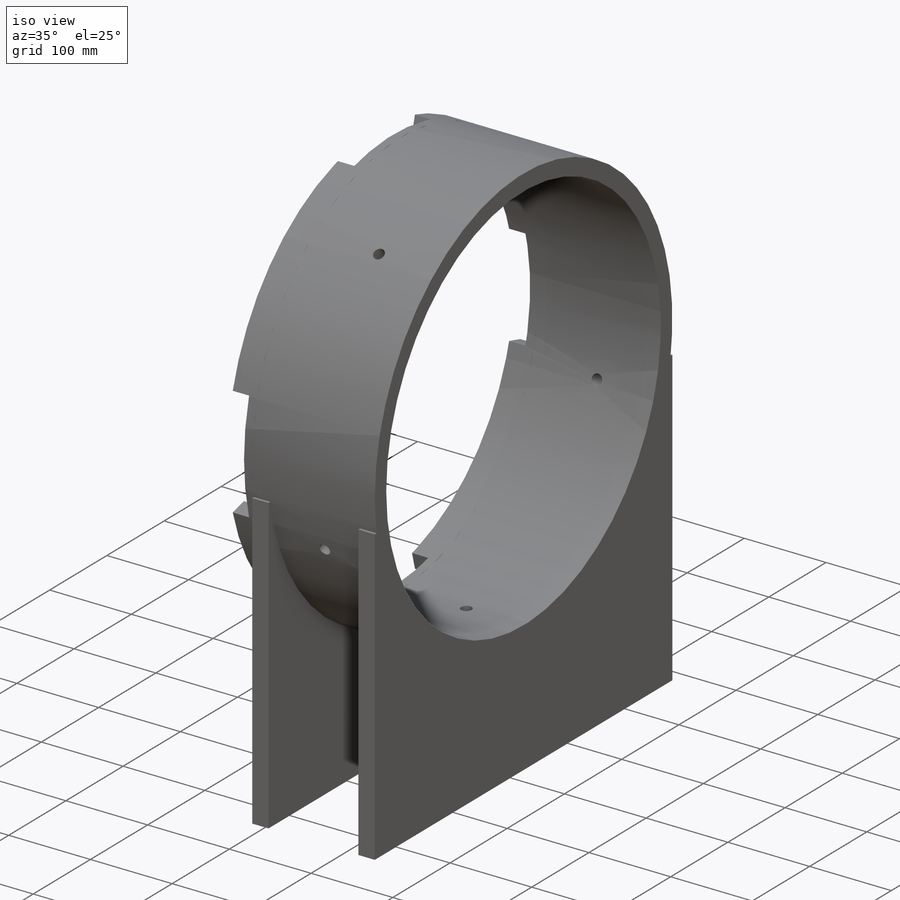
[diagram: iso view]
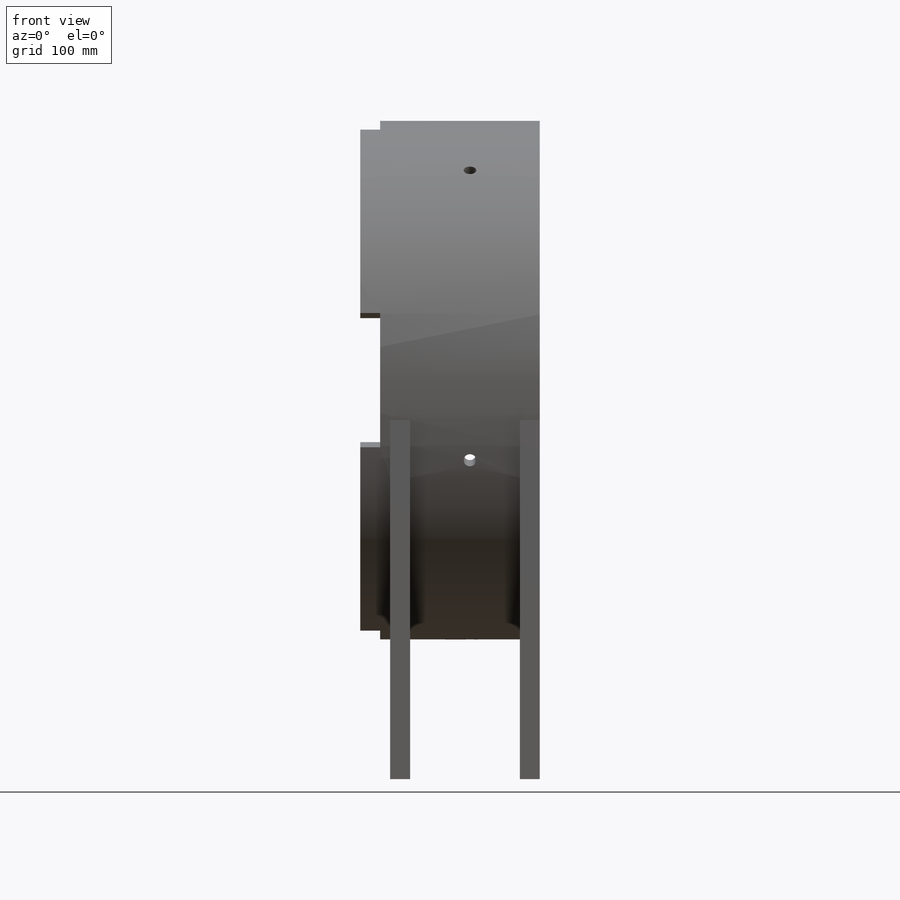
[diagram: front view]
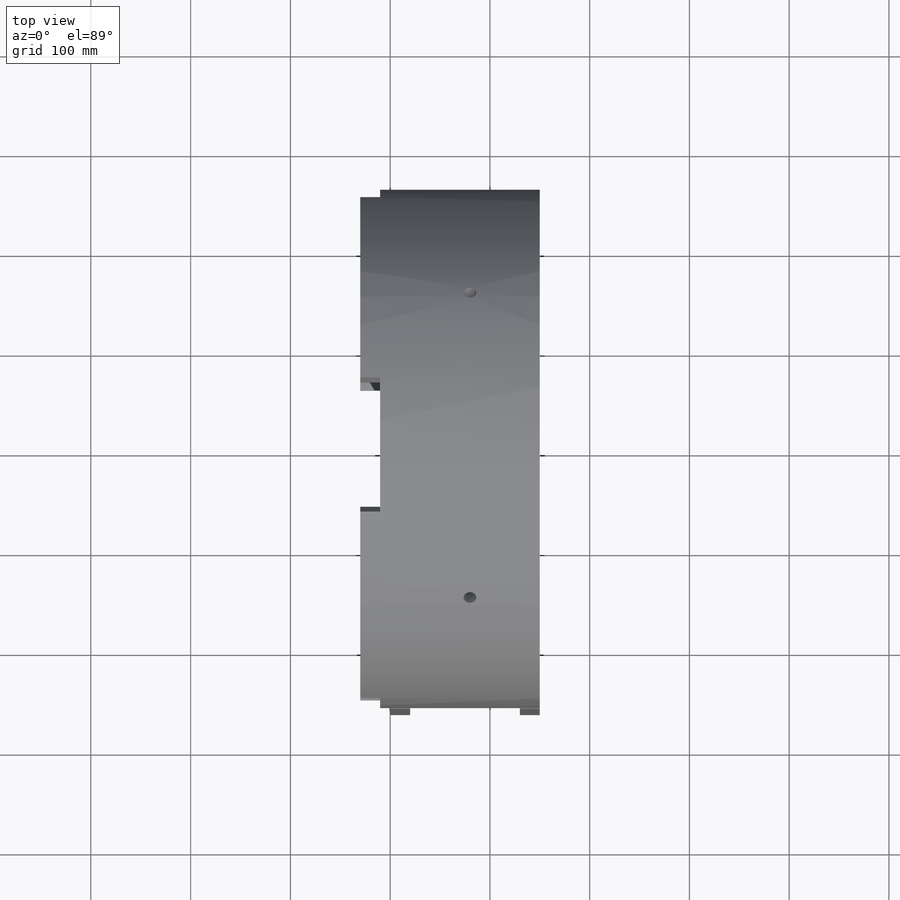
[diagram: top view]
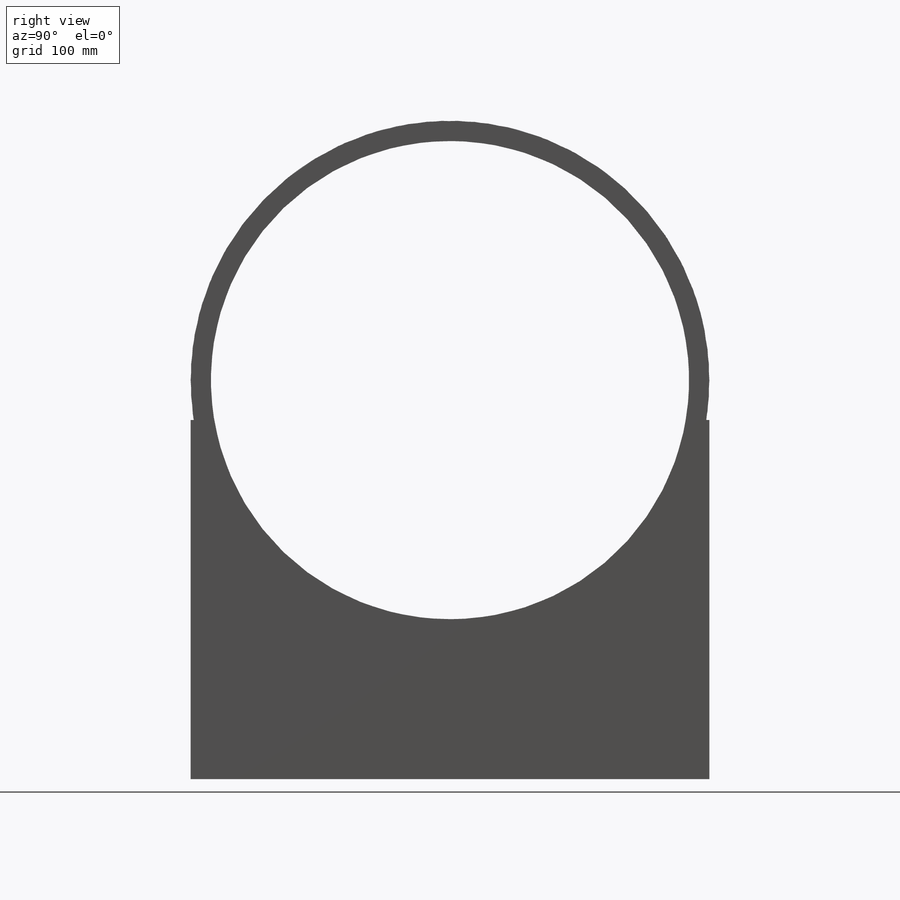
[diagram: right view]
SOLIDWORKS PART (.sldprt)
format: sldprt  version: not decoded by parser v0  size: 436,224 bytes
history: native  units: mm
features: sketch x15, plane x7, extrude x4, hole x3, material x1, cut_extrude x1 (+12 scaffold rows collapsed)
feature tree (43):
  scaffold x12  (default folders/planes/origin — collapsed)
  material  "Copper"
  sketch  "Sketch1"  dims[c1.D1=~304.984987mm c2.D1=136.0deg]
  extrude  "Boss-Extrude1"  [1 undecoded]
  sketch  "Sketch1<3>"  dims[D1=150.0mm]
  sketch  "Sketch6"  dims[D1=400.0mm]
  plane  "Plane1"  Offset=150mm
  sketch  "Sketch11"
  extrude  "Boss-Extrude2"  Depth=20mm
  extrude  "Boss-Extrude3"  Depth=20mm
  plane  "Plane3"  Offset=70mm
  plane  "Plane4"
  sketch  "Sketch31"
  extrude  "Boss-Extrude4"  Depth=30mm
  plane  "Plane5"  Offset=0mm
  sketch  "Sketch32"  dims[c1.D1=~240.454226mm c2.D1=135.0deg]
  cut_extrude  "Cut-Extrude1"  Depth=20mm
  sketch  "Sketch35"  dims[D1=45.0deg]
  plane  "Plane6"  Offset=70mm
  sketch  "Sketch37"  dims[c1.D1=~234.31138mm c2.D1=162.0deg]
  hole  "1/2-13 Tapped Hole4"  Diameter=10.71626mm Depth=45.9mm
  sketch  "3DSketch25"
  sketch  "Sketch54"  dims[hole-wizard template sketch: 29 standard entries collapsed; hole parameters kept: c8.Tap Drill Depth=45.9mm c8.Thread Major Dia.=12.7mm c8.Thread Depth=40.0mm c8.D5=~14.816244mm c8.Drill Angle=118.0deg]
  plane  "Plane8"  Offset=0mm
  sketch  "Sketch55"  dims[D1=20.0mm]
  hole  "1/2-13 Tapped Hole5"  Diameter=10.71626mm Depth=45.9mm
  sketch  "3DSketch26"
  sketch  "Sketch56"  dims[hole-wizard template sketch: 29 standard entries collapsed; hole parameters kept: c8.Tap Drill Depth=45.9mm c8.Thread Major Dia.=12.7mm c8.Thread Depth=40.0mm c8.D5=~14.816244mm c8.Drill Angle=118.0deg]
  plane  "Plane9"  Offset=0mm
  hole  "1/2-13 Tapped Hole6"  Diameter=10.71626mm Depth=45.9mm
  sketch  "3DSketch27"
  sketch  "Sketch58"  dims[hole-wizard template sketch: 29 standard entries collapsed; hole parameters kept: c8.Tap Drill Depth=45.9mm c8.Thread Major Dia.=12.7mm c8.Thread Depth=40.0mm c8.D5=~14.816244mm c8.Drill Angle=118.0deg]
decode coverage: 17 of 23 modeling features carry decoded parameters
note: ~ marks probable driven/reference dimensions
note: 1 parameter value undecoded
note: suppression state not decoded; provenance and decode notes live in map.json
